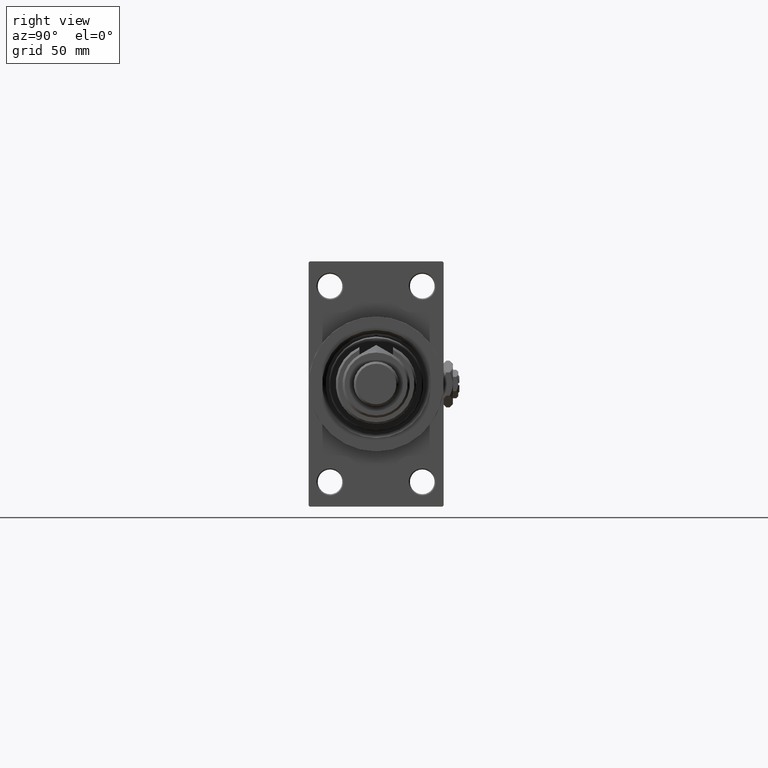
[diagram: clean part render]
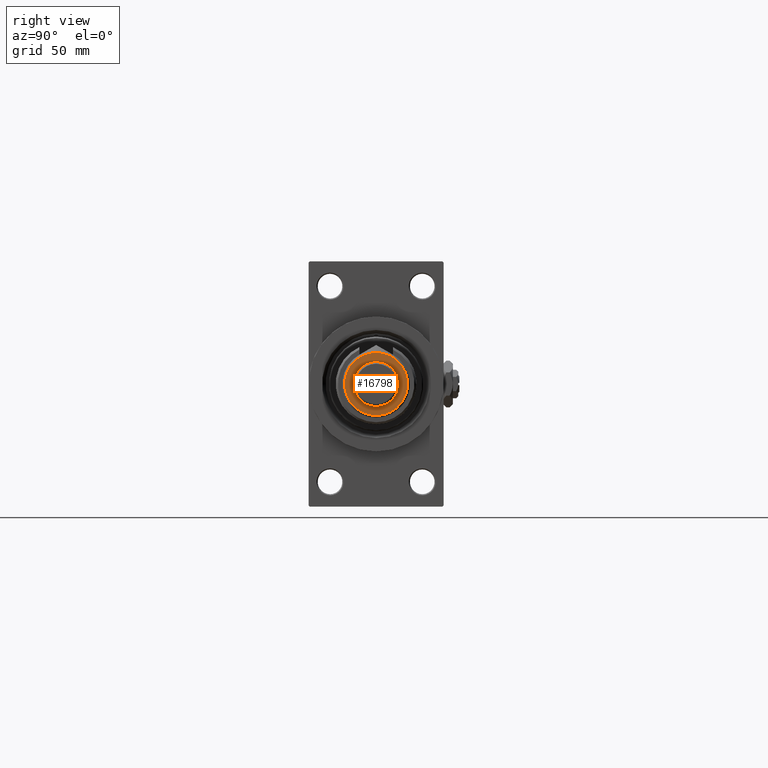
[diagram: same view with one face highlighted and labeled with its STEP entity id]
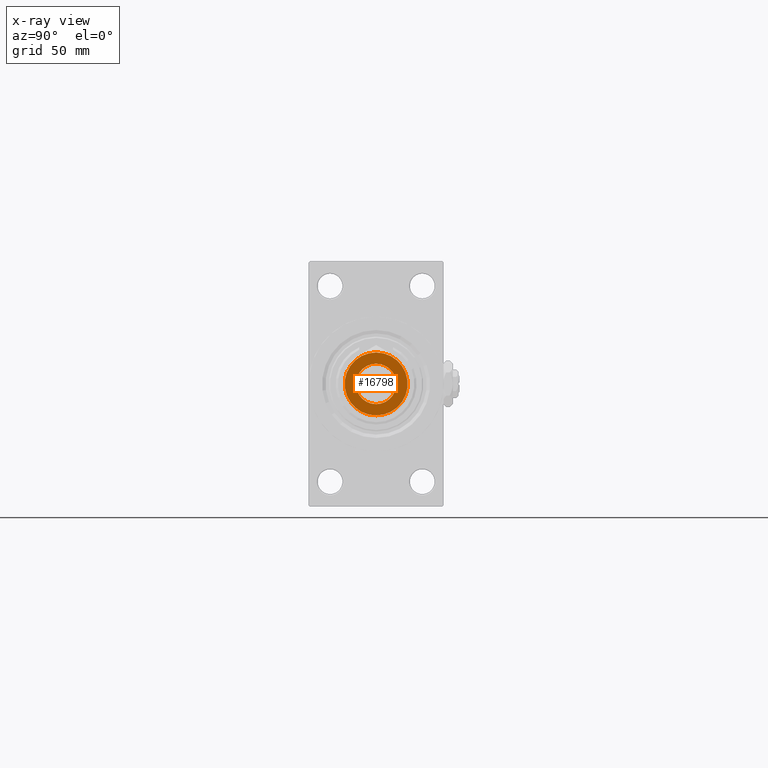
[diagram: x-ray of the same camera — body ghosted, the highlighted face saturated]
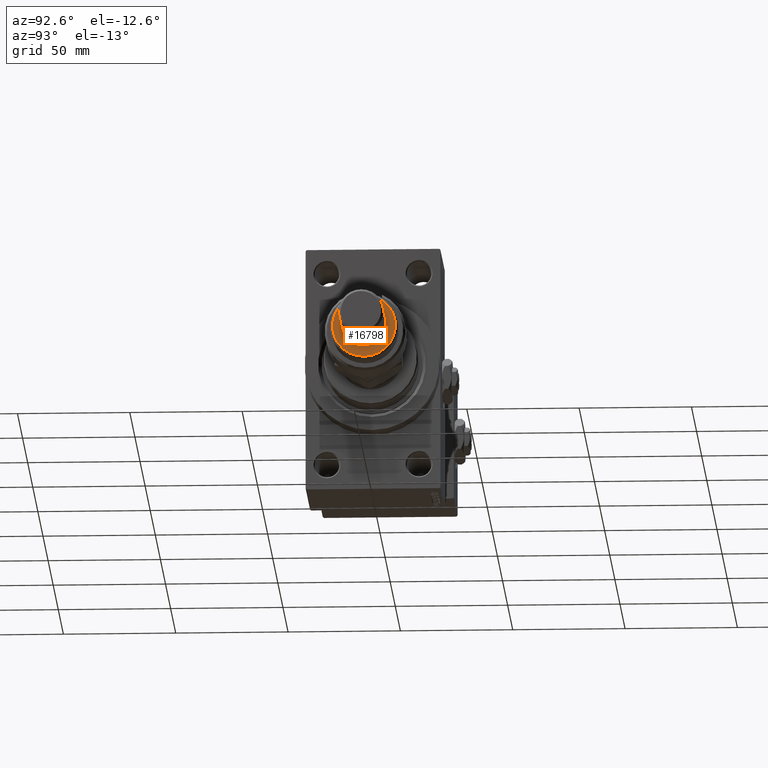
[diagram: same view with one face highlighted and labeled with its STEP entity id]
A machine part, right view. The second image highlights one B-rep face of the part: STEP entity #16798.
The next image is the same camera in x-ray: the body ghosted, the highlighted face saturated — about 0% of this face is hidden behind the body in this view.
A second angle (auxiliary view) of the same face is appended — the face is thin or edge-on in the first view.
In plain terms, the highlighted planar face has unit normal (1, 0, 0).
Its self-contained STEP definition (entity closure, byte-faithful):
#740 = ORIENTED_EDGE ( 'NONE', *, *, #11933, .F. ) ;
#956 = EDGE_LOOP ( 'NONE', ( #23639, #19051 ) ) ;
#1869 = FACE_OUTER_BOUND ( 'NONE', #956, .T. ) ;
#1880 = CARTESIAN_POINT ( 'NONE',  ( 13.99999999999997513, 1.775737858763660437E-15, 26.00000000000000355 ) ) ;
#1927 = VERTEX_POINT ( 'NONE', #2748 ) ;
#2675 = DIRECTION ( 'NONE',  ( 1.000000000000000000, 0.000000000000000000, 0.000000000000000000 ) ) ;
#2748 = CARTESIAN_POINT ( 'NONE',  ( 9.000000000000000000, 1.102182119232617714E-15, 26.00000000000000355 ) ) ;
#4798 = DIRECTION ( 'NONE',  ( 0.000000000000000000, 0.000000000000000000, 1.000000000000000000 ) ) ;
#5164 = VERTEX_POINT ( 'NONE', #33861 ) ;
#6406 = CARTESIAN_POINT ( 'NONE',  ( 0.000000000000000000, 0.000000000000000000, 26.00000000000000355 ) ) ;
#6495 = DIRECTION ( 'NONE',  ( 1.000000000000000000, 0.000000000000000000, 0.000000000000000000 ) ) ;
#9051 = DIRECTION ( 'NONE',  ( 1.000000000000000000, 0.000000000000000000, -0.000000000000000000 ) ) ;
#11641 = EDGE_LOOP ( 'NONE', ( #740, #16830 ) ) ;
#11933 = EDGE_CURVE ( 'NONE', #47569, #1927, #26952, .T. ) ;
#13281 = CARTESIAN_POINT ( 'NONE',  ( 0.000000000000000000, 0.000000000000000000, 26.00000000000000355 ) ) ;
#14320 = EDGE_CURVE ( 'NONE', #42533, #5164, #30272, .T. ) ;
#15869 = CARTESIAN_POINT ( 'NONE',  ( 0.000000000000000000, 0.000000000000000000, 26.00000000000000355 ) ) ;
#16798 = ADVANCED_FACE ( 'NONE', ( #1869, #45345 ), #29429, .T. ) ;
#16830 = ORIENTED_EDGE ( 'NONE', *, *, #29078, .F. ) ;
#17726 = AXIS2_PLACEMENT_3D ( 'NONE', #13281, #4798, #9051 ) ;
#18746 = CARTESIAN_POINT ( 'NONE',  ( 0.000000000000000000, 0.000000000000000000, 26.00000000000000355 ) ) ;
#19051 = ORIENTED_EDGE ( 'NONE', *, *, #14320, .T. ) ;
#20006 = CIRCLE ( 'NONE', #33530, 13.99999999999997513 ) ;
#23639 = ORIENTED_EDGE ( 'NONE', *, *, #41422, .T. ) ;
#24729 = CIRCLE ( 'NONE', #35745, 9.000000000000000000 ) ;
#25200 = AXIS2_PLACEMENT_3D ( 'NONE', #18746, #51341, #39120 ) ;
#26615 = CARTESIAN_POINT ( 'NONE',  ( 0.000000000000000000, 0.000000000000000000, 26.00000000000000355 ) ) ;
#26952 = CIRCLE ( 'NONE', #39654, 9.000000000000000000 ) ;
#29078 = EDGE_CURVE ( 'NONE', #1927, #47569, #24729, .T. ) ;
#29429 = PLANE ( 'NONE',  #17726 ) ;
#30240 = DIRECTION ( 'NONE',  ( 0.000000000000000000, 0.000000000000000000, 1.000000000000000000 ) ) ;
#30272 = CIRCLE ( 'NONE', #25200, 13.99999999999997513 ) ;
#32013 = DIRECTION ( 'NONE',  ( 0.000000000000000000, 0.000000000000000000, 1.000000000000000000 ) ) ;
#33530 = AXIS2_PLACEMENT_3D ( 'NONE', #6406, #30240, #2675 ) ;
#33861 = CARTESIAN_POINT ( 'NONE',  ( -13.99999999999997513, 0.000000000000000000, 26.00000000000000355 ) ) ;
#35745 = AXIS2_PLACEMENT_3D ( 'NONE', #15869, #32013, #40215 ) ;
#39120 = DIRECTION ( 'NONE',  ( 1.000000000000000000, 0.000000000000000000, 0.000000000000000000 ) ) ;
#39654 = AXIS2_PLACEMENT_3D ( 'NONE', #26615, #42778, #6495 ) ;
#40215 = DIRECTION ( 'NONE',  ( 1.000000000000000000, 0.000000000000000000, 0.000000000000000000 ) ) ;
#41422 = EDGE_CURVE ( 'NONE', #5164, #42533, #20006, .T. ) ;
#42533 = VERTEX_POINT ( 'NONE', #1880 ) ;
#42778 = DIRECTION ( 'NONE',  ( 0.000000000000000000, 0.000000000000000000, 1.000000000000000000 ) ) ;
#45345 = FACE_BOUND ( 'NONE', #11641, .T. ) ;
#47569 = VERTEX_POINT ( 'NONE', #50785 ) ;
#50785 = CARTESIAN_POINT ( 'NONE',  ( -9.000000000000000000, 0.000000000000000000, 26.00000000000000355 ) ) ;
#51341 = DIRECTION ( 'NONE',  ( 0.000000000000000000, 0.000000000000000000, 1.000000000000000000 ) ) ;